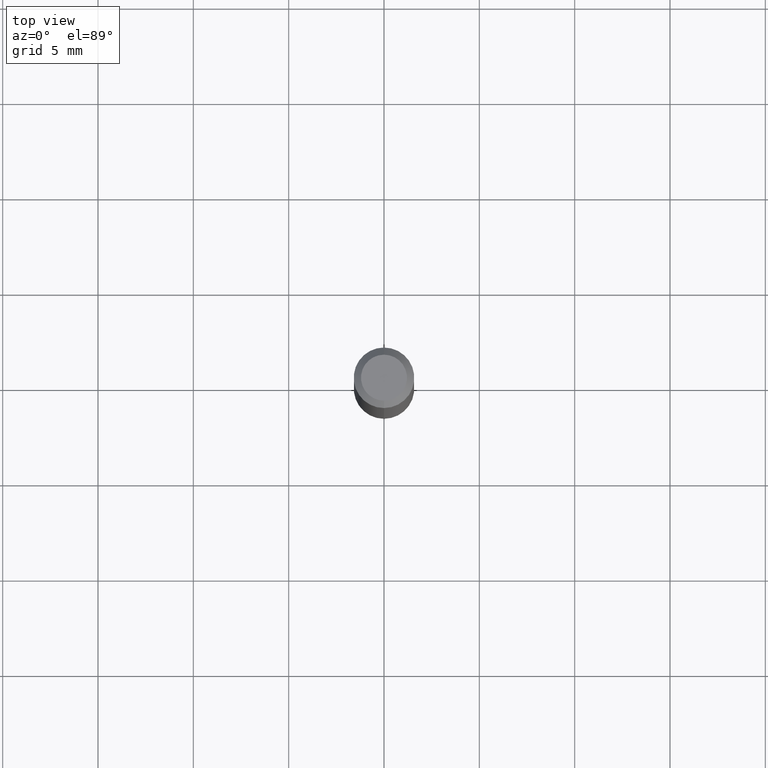
[diagram: clean part render]
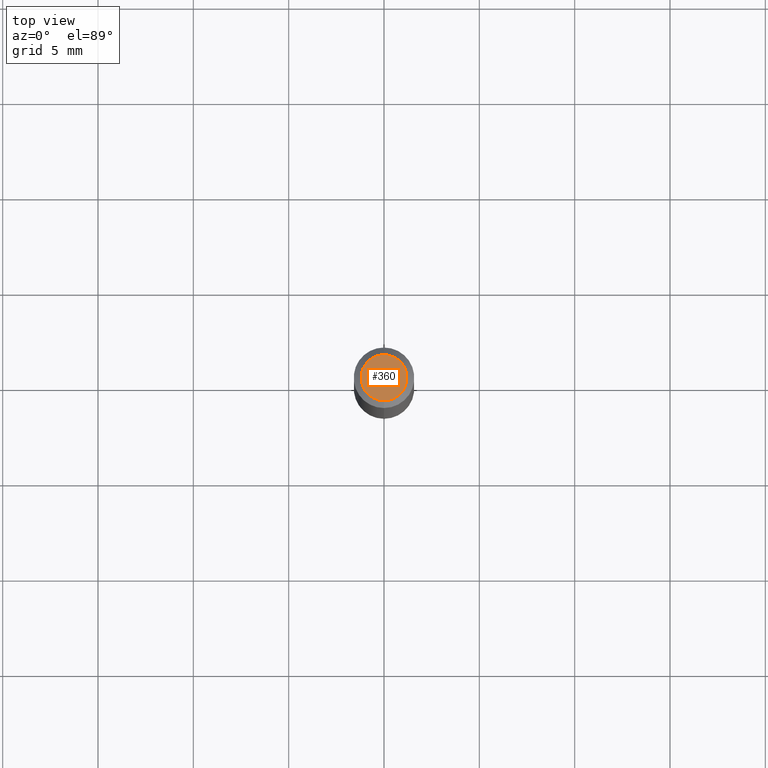
[diagram: same view with one face highlighted and labeled with its STEP entity id]
A machine part, top view. The second image highlights one B-rep face of the part: STEP entity #360.
In plain terms, the highlighted planar face has unit normal (0, -0, -1).
Its self-contained STEP definition (entity closure, byte-faithful):
#89 = CARTESIAN_POINT ( 'NONE',  ( 3.840629472727447874E-16, 0.04749999999999999362, -2.313455976474456528E-16 ) ) ;
#104 = CIRCLE ( 'NONE', #243, 0.04749999999999999362 ) ;
#115 = DIRECTION ( 'NONE',  ( -2.445463999314943664E-29, 3.491488222554852049E-15, 1.000000000000000000 ) ) ;
#143 = ORIENTED_EDGE ( 'NONE', *, *, #498, .T. ) ;
#151 = AXIS2_PLACEMENT_3D ( 'NONE', #394, #389, #480 ) ;
#155 = CARTESIAN_POINT ( 'NONE',  ( 1.601776647130526163E-45, -2.286921541346059777E-31, -6.549990707609015679E-17 ) ) ;
#220 = EDGE_CURVE ( 'NONE', #368, #425, #104, .T. ) ;
#229 = PLANE ( 'NONE',  #151 ) ;
#243 = AXIS2_PLACEMENT_3D ( 'NONE', #155, #469, #284 ) ;
#264 = FACE_OUTER_BOUND ( 'NONE', #445, .T. ) ;
#269 = ORIENTED_EDGE ( 'NONE', *, *, #220, .T. ) ;
#271 = DIRECTION ( 'NONE',  ( -6.982962677686266711E-15, -1.000000000000000000, 3.491488222554852443E-15 ) ) ;
#284 = DIRECTION ( 'NONE',  ( -6.982962677686266711E-15, -1.000000000000000000, 3.491488222554852443E-15 ) ) ;
#360 = ADVANCED_FACE ( 'NONE', ( #264 ), #229, .F. ) ;
#368 = VERTEX_POINT ( 'NONE', #429 ) ;
#389 = DIRECTION ( 'NONE',  ( 2.445463999314943664E-29, -3.491488222554851654E-15, -1.000000000000000000 ) ) ;
#394 = CARTESIAN_POINT ( 'NONE',  ( 3.316907271900976096E-16, 0.04749999999999999362, -1.985956441094005251E-16 ) ) ;
#416 = CIRCLE ( 'NONE', #423, 0.04749999999999999362 ) ;
#423 = AXIS2_PLACEMENT_3D ( 'NONE', #467, #115, #271 ) ;
#425 = VERTEX_POINT ( 'NONE', #89 ) ;
#429 = CARTESIAN_POINT ( 'NONE',  ( -3.773273898774340269E-16, -0.04749999999999999362, 1.003457834952653145E-16 ) ) ;
#445 = EDGE_LOOP ( 'NONE', ( #143, #269 ) ) ;
#467 = CARTESIAN_POINT ( 'NONE',  ( 1.601776647130526163E-45, -2.286921541346059777E-31, -6.549990707609015679E-17 ) ) ;
#469 = DIRECTION ( 'NONE',  ( -2.445463999314943664E-29, 3.491488222554852049E-15, 1.000000000000000000 ) ) ;
#480 = DIRECTION ( 'NONE',  ( 6.982962677686265922E-15, 1.000000000000000000, -3.491488222554851654E-15 ) ) ;
#498 = EDGE_CURVE ( 'NONE', #425, #368, #416, .T. ) ;